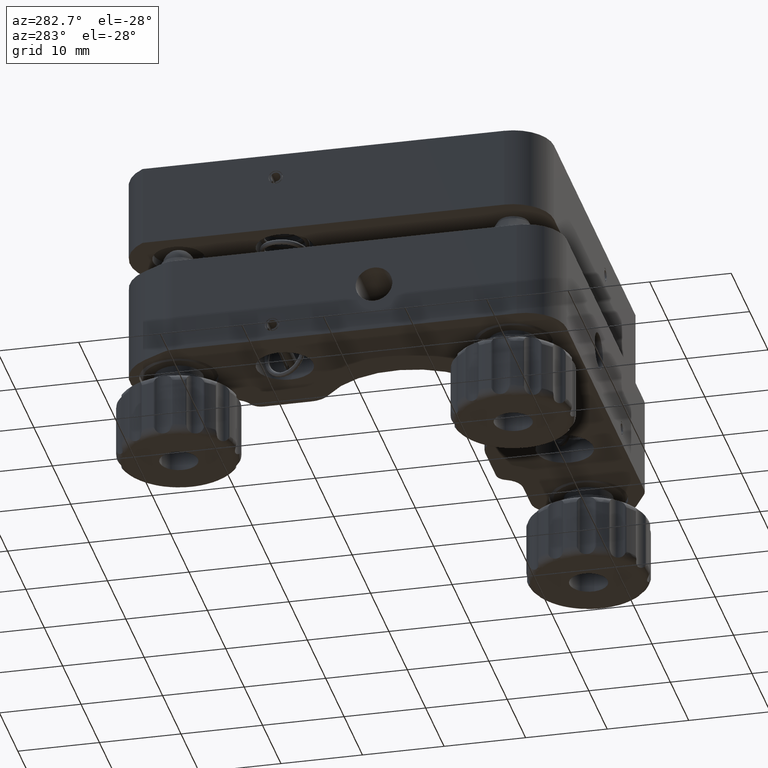
[diagram: clean part render]
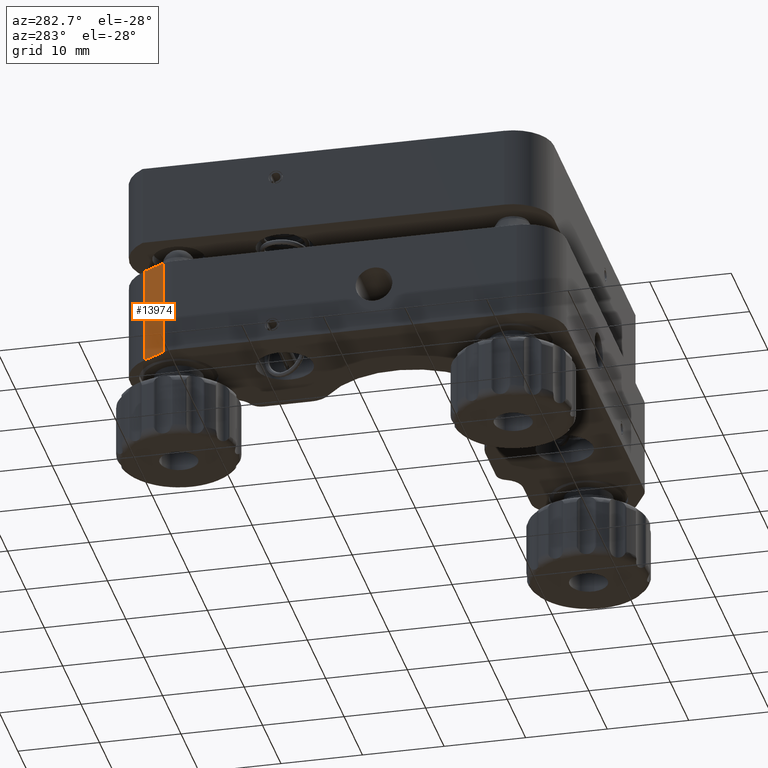
[diagram: same view with one face highlighted and labeled with its STEP entity id]
A machine part, auxiliary view. The second image highlights one B-rep face of the part: STEP entity #13974.
In plain terms, the highlighted planar face has unit normal (-0.866, 0.5, 0).
Its self-contained STEP definition (entity closure, byte-faithful):
#650 = VECTOR ( 'NONE', #12187, 1000.000000000000000 ) ;
#2012 = CARTESIAN_POINT ( 'NONE',  ( -20.69615242270665300, 28.49999999999997200, -12.00000000000000000 ) ) ;
#2116 = CARTESIAN_POINT ( 'NONE',  ( -22.16506350946109200, 25.95577136594002700, -12.00000000000000000 ) ) ;
#2669 = VERTEX_POINT ( 'NONE', #10983 ) ;
#3447 = DIRECTION ( 'NONE',  ( -0.8660254037844418200, 0.4999999999999946200, 0.0000000000000000000 ) ) ;
#5794 = EDGE_CURVE ( 'NONE', #2669, #15126, #13715, .T. ) ;
#5929 = CARTESIAN_POINT ( 'NONE',  ( -20.69615242270665300, 28.49999999999997200, -12.00000000000000000 ) ) ;
#8014 = EDGE_CURVE ( 'NONE', #11648, #15126, #12399, .T. ) ;
#8047 = CARTESIAN_POINT ( 'NONE',  ( -22.16506350946109200, 25.95577136594002700, -12.00000000000000000 ) ) ;
#8158 = FACE_OUTER_BOUND ( 'NONE', #15225, .T. ) ;
#9367 = VECTOR ( 'NONE', #13046, 1000.000000000000100 ) ;
#9820 = ORIENTED_EDGE ( 'NONE', *, *, #17380, .F. ) ;
#9862 = VERTEX_POINT ( 'NONE', #20370 ) ;
#10011 = PLANE ( 'NONE',  #17040 ) ;
#10172 = VECTOR ( 'NONE', #15667, 1000.000000000000000 ) ;
#10983 = CARTESIAN_POINT ( 'NONE',  ( -20.69615242270665300, 28.49999999999997200, 0.0000000000000000000 ) ) ;
#11648 = VERTEX_POINT ( 'NONE', #8047 ) ;
#11660 = DIRECTION ( 'NONE',  ( -0.4999999999999946200, -0.8660254037844418200, 0.0000000000000000000 ) ) ;
#12187 = DIRECTION ( 'NONE',  ( 0.0000000000000000000, 0.0000000000000000000, 1.000000000000000000 ) ) ;
#12399 = LINE ( 'NONE', #2116, #650 ) ;
#12981 = CARTESIAN_POINT ( 'NONE',  ( -20.69615242270665300, 28.49999999999997200, 0.0000000000000000000 ) ) ;
#13046 = DIRECTION ( 'NONE',  ( -0.4999999999999945600, -0.8660254037844418200, 0.0000000000000000000 ) ) ;
#13250 = LINE ( 'NONE', #19352, #15843 ) ;
#13715 = LINE ( 'NONE', #12981, #9367 ) ;
#13764 = EDGE_CURVE ( 'NONE', #9862, #11648, #13250, .T. ) ;
#13974 = ADVANCED_FACE ( 'NONE', ( #8158 ), #10011, .T. ) ;
#15126 = VERTEX_POINT ( 'NONE', #19488 ) ;
#15225 = EDGE_LOOP ( 'NONE', ( #16144, #9820, #17065, #19544 ) ) ;
#15667 = DIRECTION ( 'NONE',  ( 0.0000000000000000000, 0.0000000000000000000, 1.000000000000000000 ) ) ;
#15843 = VECTOR ( 'NONE', #21084, 1000.000000000000100 ) ;
#16144 = ORIENTED_EDGE ( 'NONE', *, *, #5794, .F. ) ;
#17040 = AXIS2_PLACEMENT_3D ( 'NONE', #2012, #3447, #11660 ) ;
#17065 = ORIENTED_EDGE ( 'NONE', *, *, #13764, .T. ) ;
#17380 = EDGE_CURVE ( 'NONE', #9862, #2669, #18914, .T. ) ;
#18914 = LINE ( 'NONE', #5929, #10172 ) ;
#19352 = CARTESIAN_POINT ( 'NONE',  ( -20.69615242270665300, 28.49999999999997200, -12.00000000000000000 ) ) ;
#19488 = CARTESIAN_POINT ( 'NONE',  ( -22.16506350946109200, 25.95577136594002700, 0.0000000000000000000 ) ) ;
#19544 = ORIENTED_EDGE ( 'NONE', *, *, #8014, .T. ) ;
#20370 = CARTESIAN_POINT ( 'NONE',  ( -20.69615242270665300, 28.49999999999997200, -12.00000000000000000 ) ) ;
#21084 = DIRECTION ( 'NONE',  ( -0.4999999999999945600, -0.8660254037844418200, 0.0000000000000000000 ) ) ;